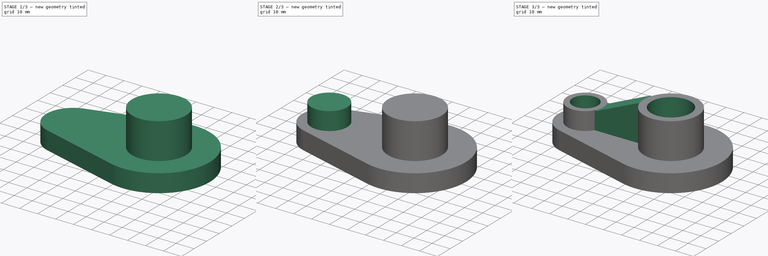
[diagram: build sequence overview — one tinted view per stage of 3, left to right]
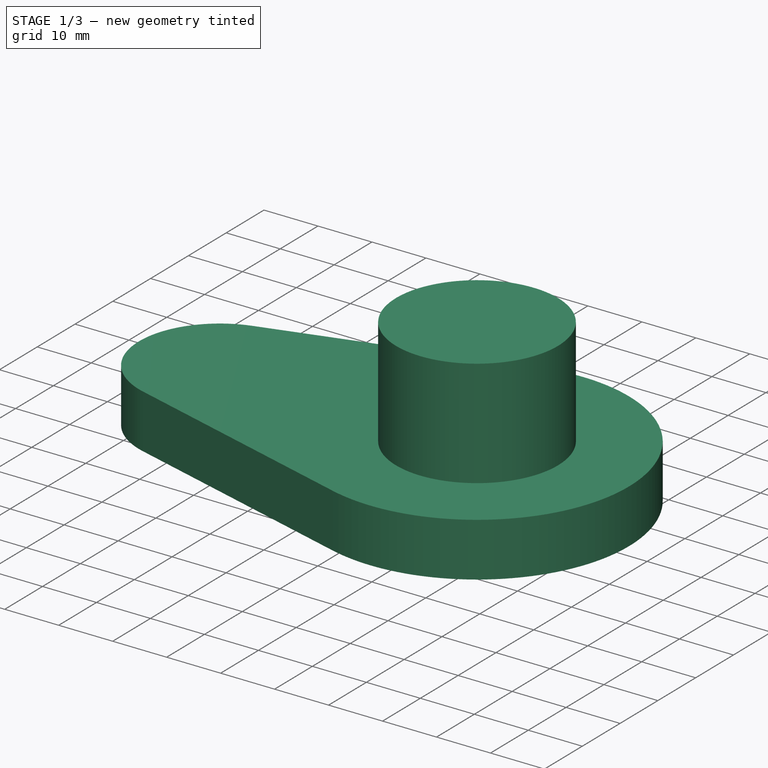
[diagram: stage 1 of 3 — iso view after this stage's code; geometry added in this stage tinted green]
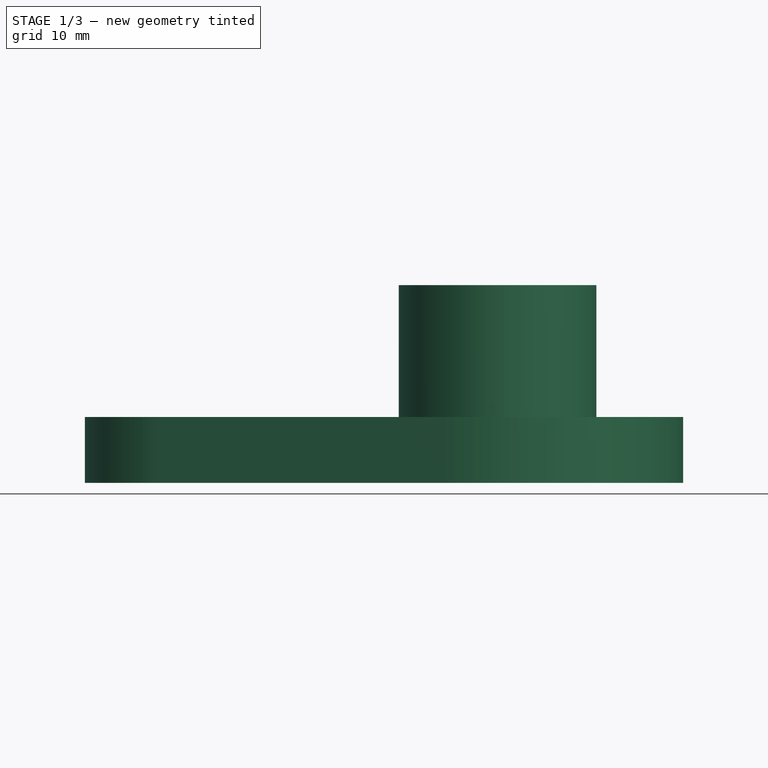
[diagram: stage 1 of 3 — front view after this stage's code; geometry added in this stage tinted green]
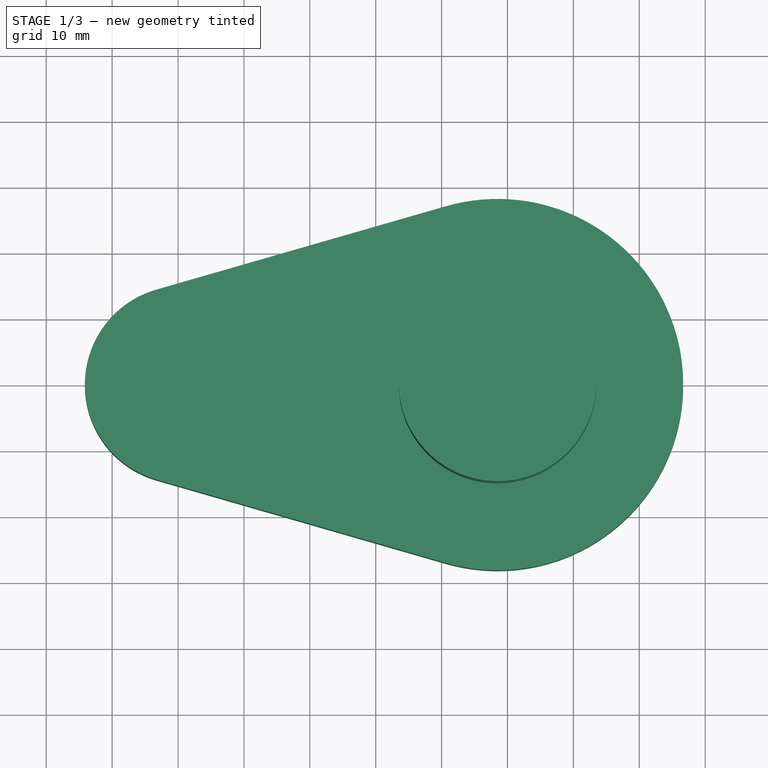
[diagram: stage 1 of 3 — top view after this stage's code; geometry added in this stage tinted green]
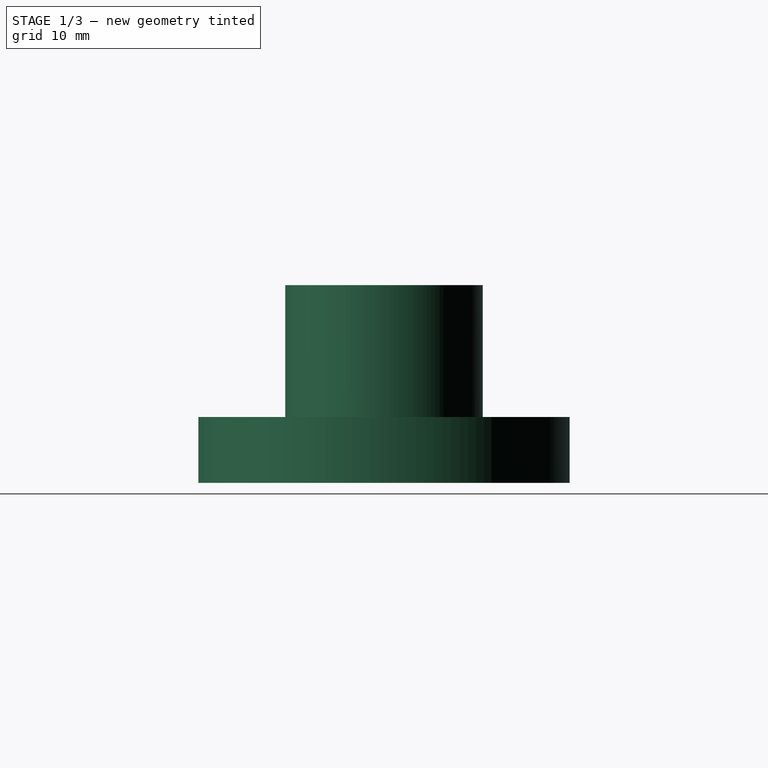
[diagram: stage 1 of 3 — right view after this stage's code; geometry added in this stage tinted green]
FCSTD DOCUMENT  (FreeCAD 2020.11.29R23076 +2859 (Git))
Label: play part 01
License: All rights reserved
LicenseURL: http://en.wikipedia.org/wiki/All_rights_reserved
objects: Sketcher::SketchObject×5, PartDesign::Line×5, PartDesign::Pad×4, PartDesign::Pocket×1, PartDesign::Plane×1, PartDesign::Body×1
note: 27 computed .brp shape members not serialized (recipe doc carries the construction recipe); baked Part::Feature solids carry a one-line shape summary decoded from their .brp

FEATURE [Sketcher::SketchObject] Sketch
  MapMode = 5
  Support = -> [XY_Plane]
  sketch-geometry (5):
    g0: ArcOfCircle CenterX=-9.14673 CenterY=0 CenterZ=0 NormalX=0 NormalY=0 NormalZ=1 AngleXU=0 Radius=14.9997 StartAngle=1.85121 EndAngle=4.43197
    g1: Circle [constr] CenterX=38.4867 CenterY=0 CenterZ=0 NormalX=0 NormalY=0 NormalZ=1 AngleXU=0 Radius=28.1825
    g2: LineSegment StartX=-13.298 StartY=14.4138 StartZ=0 EndX=30.6871 EndY=27.0817 EndZ=0
    g3: LineSegment StartX=30.6871 StartY=-27.0817 StartZ=0 EndX=-13.298 EndY=-14.4138 EndZ=0
    g4: ArcOfCircle CenterX=38.4867 CenterY=0 CenterZ=0 NormalX=0 NormalY=0 NormalZ=1 AngleXU=0 Radius=28.1825 StartAngle=4.43197 EndAngle=8.1344
  constraints (12):
    c: PointOnObject(g0,g-1)
    c: PointOnObject(g1,g-1)
    c: PointOnObject(g2,g1)
    c: Tangent(g2,g0)
    c: Tangent(g3,g0)
    c: Tangent(g2,g1)
    c: Tangent(g1,g3)
    c: Coincident(g0,g2)
    c: Coincident(g0,g3)
    c: Coincident(g4,g1)
    c: Coincident(g4,g3)
    c: Coincident(g4,g2)
FEATURE [PartDesign::Pad] Pad
  ClaimChildren = false
  Direction = (1,1,1)
  Fit = 0
  FitJoin = 0
  InnerFit = 0
  InnerFitJoin = 0
  InnerTaperAngle = 0
  InnerTaperAngleRev = 0
  Length = 10
  Length2 = 100
  NewSolid = false
  Profile = -> Sketch
  Suppress = false
  Type = 0
FEATURE [Sketcher::SketchObject] Sketch001
  ExternalGeometry = -> [Pad]
  MapMode = 5
  Support = -> [XY_Plane]
  sketch-geometry (1):
    g0: Circle CenterX=38.4867 CenterY=0 CenterZ=0 NormalX=0 NormalY=0 NormalZ=1 AngleXU=0 Radius=15
  constraints (2):
    c: Coincident(g0,g-3)
    c: Diameter(g0) = 30
FEATURE [PartDesign::Pad] Pad001
  BaseFeature = -> Pad
  ClaimChildren = false
  Direction = (1,1,1)
  Fit = 0
  FitJoin = 0
  InnerFit = 0
  InnerFitJoin = 0
  InnerTaperAngle = 0
  InnerTaperAngleRev = 0
  Length = 30
  Length2 = 100
  NewSolid = false
  Profile = -> Sketch001
  Suppress = false
  Type = 0
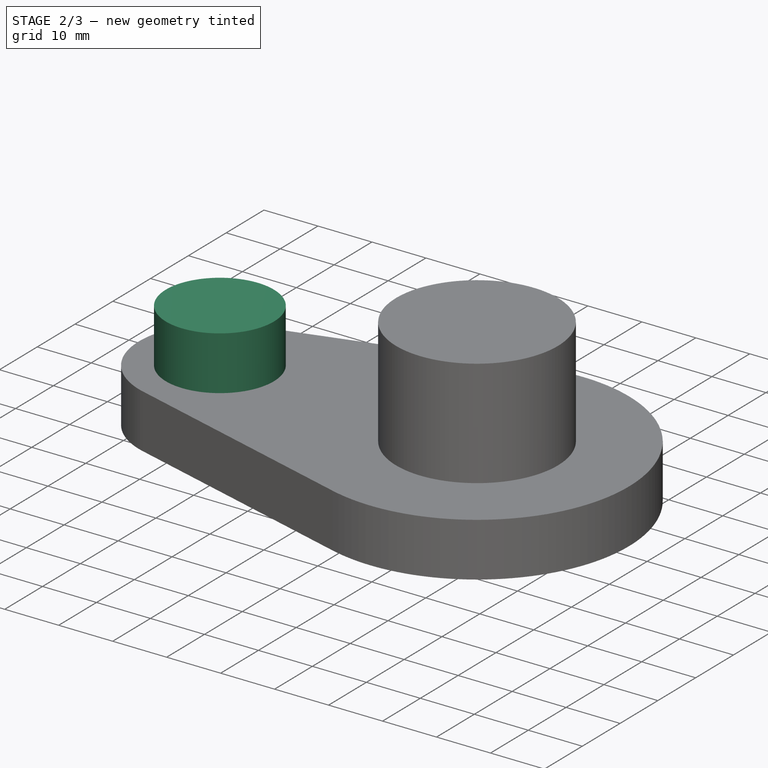
[diagram: stage 2 of 3 — iso view after this stage's code; geometry added in this stage tinted green]
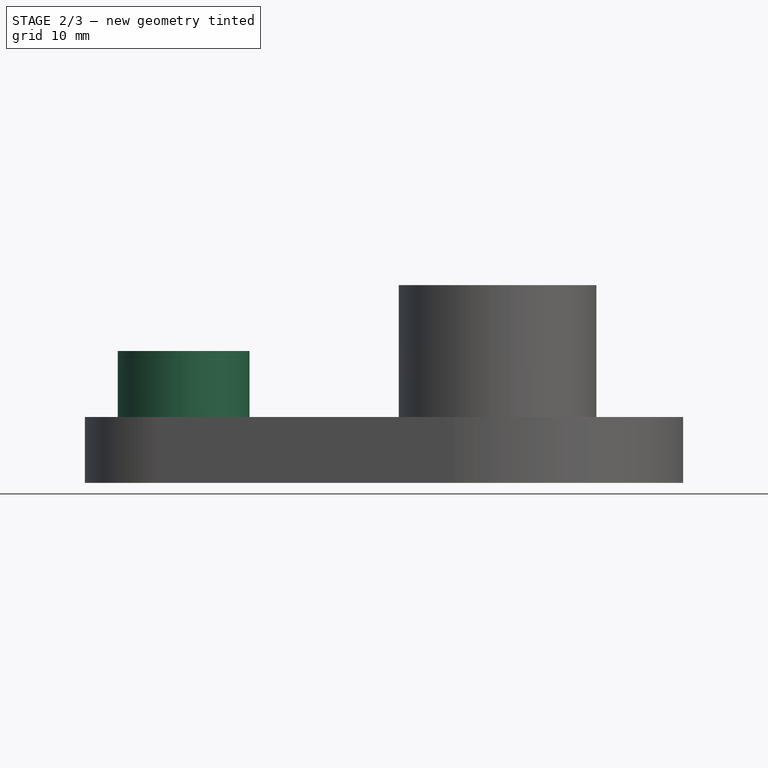
[diagram: stage 2 of 3 — front view after this stage's code; geometry added in this stage tinted green]
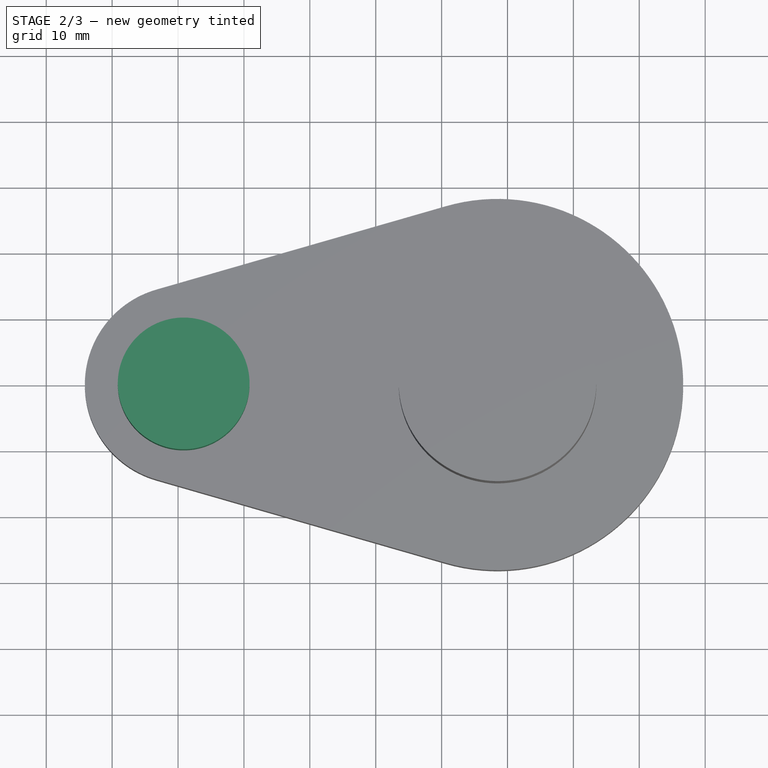
[diagram: stage 2 of 3 — top view after this stage's code; geometry added in this stage tinted green]
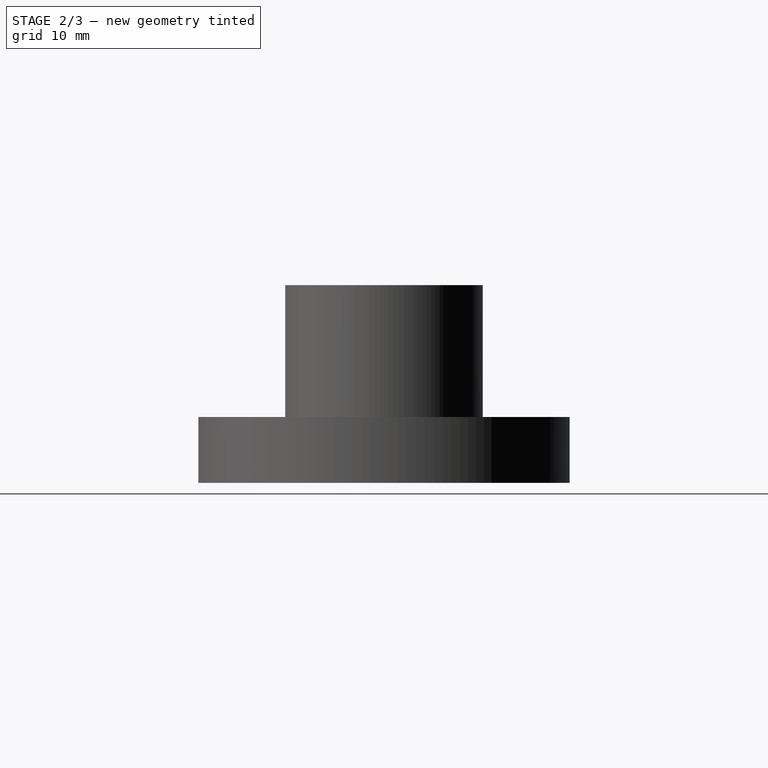
[diagram: stage 2 of 3 — right view after this stage's code; geometry added in this stage tinted green]
FEATURE [Sketcher::SketchObject] Sketch002
  ExternalGeometry = -> [Pad001]
  MapMode = 5
  Support = -> [XY_Plane]
  sketch-geometry (1):
    g0: Circle CenterX=-9.14673 CenterY=0 CenterZ=0 NormalX=0 NormalY=0 NormalZ=1 AngleXU=0 Radius=10
  constraints (2):
    c: Coincident(g0,g-3)
    c: Diameter(g0) = 20
FEATURE [PartDesign::Pad] Pad002
  BaseFeature = -> Pad001
  ClaimChildren = false
  Direction = (1,1,1)
  Fit = 0
  FitJoin = 0
  InnerFit = 0
  InnerFitJoin = 0
  InnerTaperAngle = 0
  InnerTaperAngleRev = 0
  Length = 20
  Length2 = 100
  NewSolid = false
  Profile = -> Sketch002
  Suppress = false
  Type = 0
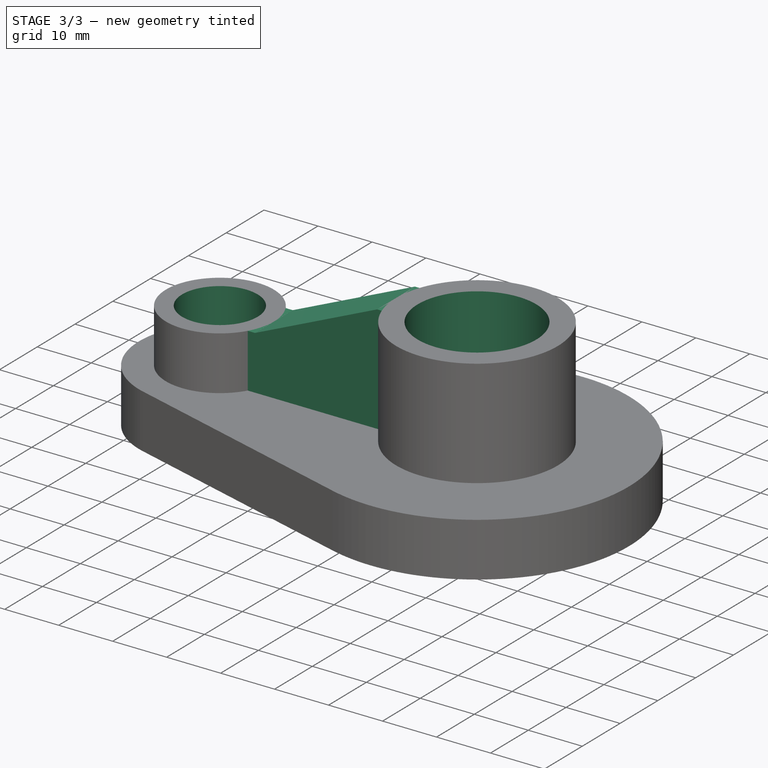
[diagram: stage 3 of 3 — iso view after this stage's code; geometry added in this stage tinted green]
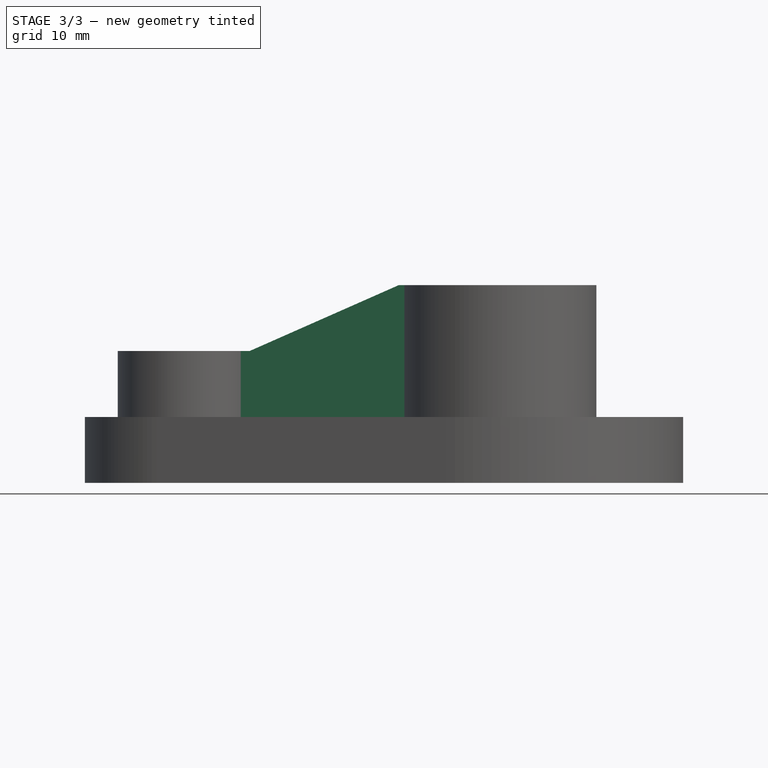
[diagram: stage 3 of 3 — front view after this stage's code; geometry added in this stage tinted green]
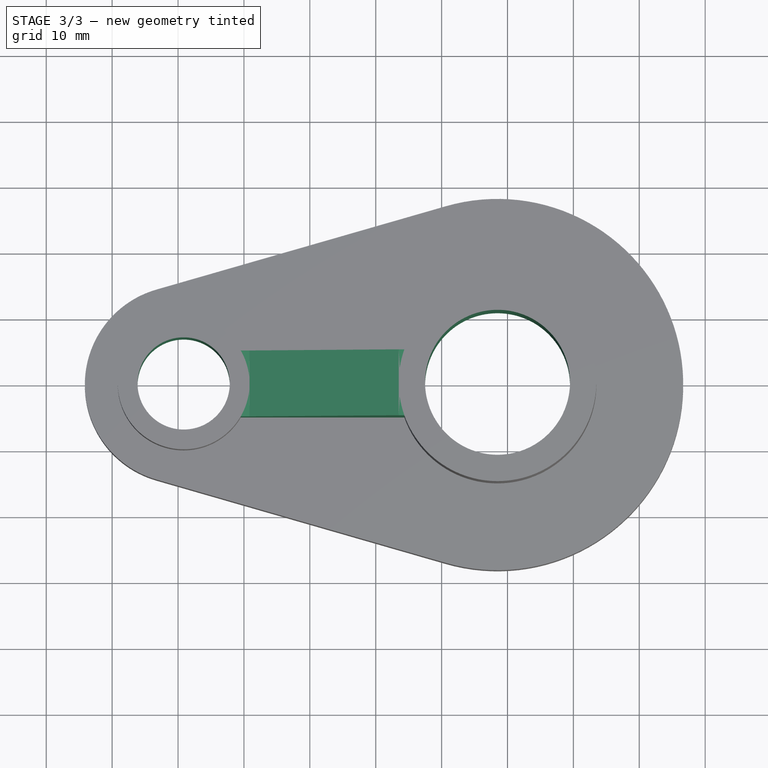
[diagram: stage 3 of 3 — top view after this stage's code; geometry added in this stage tinted green]
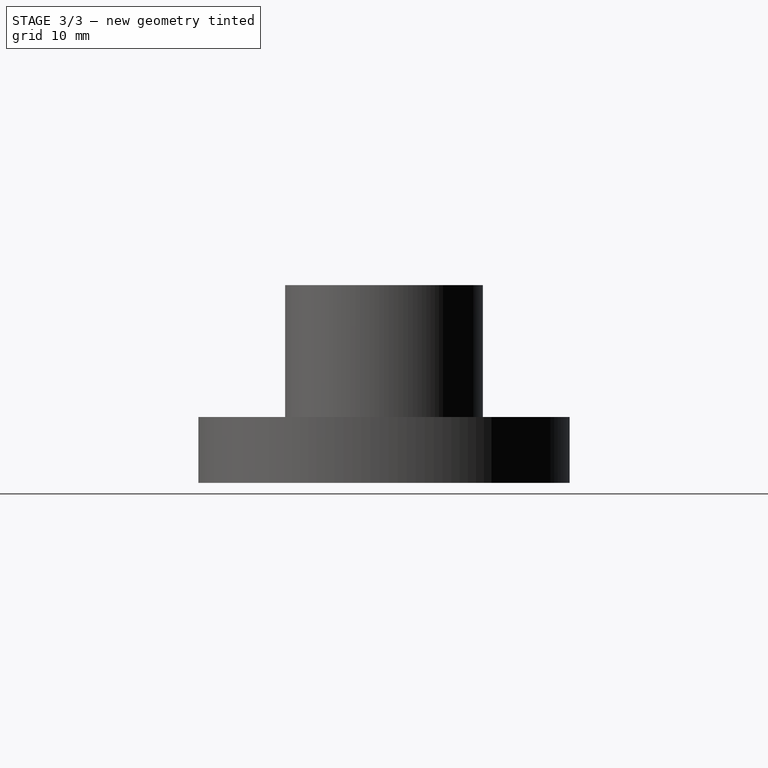
[diagram: stage 3 of 3 — right view after this stage's code; geometry added in this stage tinted green]
FEATURE [Sketcher::SketchObject] Sketch003
  ExternalGeometry = -> [Pad002]
  MapMode = 5
  Support = -> [XY_Plane]
  sketch-geometry (2):
    g0: Circle CenterX=-9.14673 CenterY=0 CenterZ=0 NormalX=0 NormalY=0 NormalZ=1 AngleXU=0 Radius=7
    g1: Circle CenterX=38.4867 CenterY=0 CenterZ=0 NormalX=0 NormalY=0 NormalZ=1 AngleXU=0 Radius=11
  constraints (4):
    c: Coincident(g0,g-4)
    c: Coincident(g1,g-3)
    c: Diameter(g0) = 14
    c: Diameter(g1) = 22
FEATURE [PartDesign::Pocket] Pocket
  BaseFeature = -> Pad002
  ClaimChildren = false
  Fit = 0
  FitJoin = 0
  InnerFit = 0
  InnerFitJoin = 0
  InnerTaperAngle = 0
  InnerTaperAngleRev = 0
  Length = 5
  Length2 = 100
  NewSolid = false
  Profile = -> Sketch003
  Reversed = true
  Suppress = false
  Type = 1
FEATURE [PartDesign::Line] DatumLine
  AttacherType = Attacher::AttachEngineLine
  Length = 30
  ResizeMode = 0
FEATURE [PartDesign::Line] DatumLine001
  AttacherType = Attacher::AttachEngineLine
  Length = 30
  ResizeMode = 0
FEATURE [PartDesign::Line] DatumLine002
  AttacherType = Attacher::AttachEngineLine
  Length = 30
  ResizeMode = 0
FEATURE [PartDesign::Line] DatumLine003
  AttacherType = Attacher::AttachEngineLine
  Length = 30
  MapMode = 42
  Placement = pos=(38.4867,-1e-16,0) rot=(0,0,1;0rad)
  ResizeMode = 0
  Support = -> [Pocket]
FEATURE [PartDesign::Line] DatumLine004
  AttacherType = Attacher::AttachEngineLine
  Length = 30
  MapMode = 42
  Placement = pos=(-9.14673,-2e-16,0) rot=(0,0,1;0rad)
  ResizeMode = 0
  Support = -> [Pocket]
FEATURE [PartDesign::Plane] DatumPlane
  Length = 90.7126
  MapMode = 13
  Placement = pos=(6.7311,-1e-16,0.333333) rot=(0,0.707107,0.707107;3.14159rad)
  ResizeMode = 0
  Support = -> [DatumLine004,DatumLine003]
  Width = 30
FEATURE [Sketcher::SketchObject] Sketch004
  ExternalGeometry = -> [Pocket]
  MapMode = 5
  Placement = pos=(6.7311,-1e-16,0.333333) rot=(0,0.707107,0.707107;3.14159rad)
  Support = -> [DatumPlane]
  sketch-geometry (6):
    g0: LineSegment StartX=-16.7556 StartY=29.6667 StartZ=0 EndX=5.87782 EndY=19.6667 EndZ=0
    g1: LineSegment StartX=5.87782 StartY=19.6667 StartZ=0 EndX=7.87782 EndY=19.6667 EndZ=0
    g2: LineSegment StartX=7.87782 StartY=19.6667 StartZ=0 EndX=7.87782 EndY=9.66667 EndZ=0
    g3: LineSegment StartX=7.87782 StartY=9.66667 StartZ=0 EndX=-18.7556 EndY=9.66667 EndZ=0
    g4: LineSegment StartX=-18.7556 StartY=9.66667 StartZ=0 EndX=-18.7556 EndY=29.6667 EndZ=0
    g5: LineSegment StartX=-18.7556 StartY=29.6667 StartZ=0 EndX=-16.7556 EndY=29.6667 EndZ=0
  constraints (16):
    c: Coincident(g0,g-4)
    c: Coincident(g0,g-3)
    c: Coincident(g0,g1)
    c: PointOnObject(g1,g-3)
    c: Coincident(g1,g2)
    c: PointOnObject(g2,g-5)
    c: Vertical(g2)
    c: Coincident(g2,g3)
    c: PointOnObject(g3,g-5)
    c: Coincident(g3,g4)
    c: PointOnObject(g4,g-4)
    c: Vertical(g4)
    c: Coincident(g4,g5)
    c: Coincident(g5,g0)
    c: DistanceX(g5,g5) = 2
    c: DistanceX(g1,g1) = 2
FEATURE [PartDesign::Pad] Pad003
  BaseFeature = -> Pocket
  ClaimChildren = false
  Direction = (1,1,1)
  Fit = 0
  FitJoin = 0
  InnerFit = 0
  InnerFitJoin = 0
  InnerTaperAngle = 0
  InnerTaperAngleRev = 0
  Length = 10
  Length2 = 100
  Midplane = true
  NewSolid = false
  Profile = -> Sketch004
  Suppress = false
  Type = 0
FEATURE [PartDesign::Body] Body
  ExportMode = 0
  Group = -> [Sketch,Pad,Sketch001,Pad001,Sketch002,Pad002,Sketch003,Pocket,DatumLine,DatumLine001,DatumLine002,DatumLine003,DatumLine004,DatumPlane,Sketch004,Pad003]
  Origin = -> Origin
  Tip = -> Pad003
  _ExportChildren = -> [Pad,Pad001,Pad002,Pocket,DatumLine,DatumLine001,DatumLine002,DatumLine003,DatumLine004,DatumPlane,Pad003]
  _GroupVersion = 1
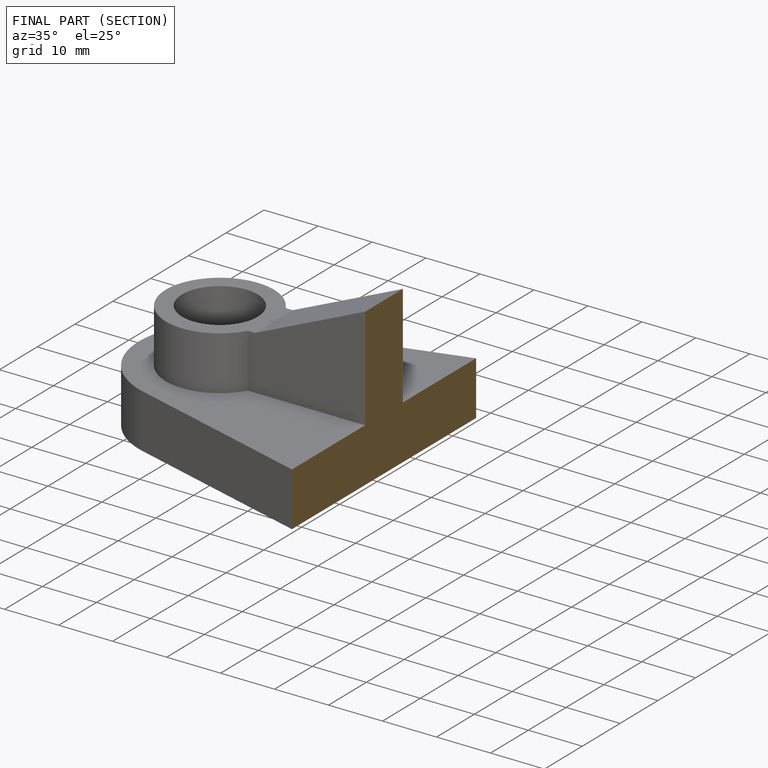
[diagram: finished part — half-section view (interior)]
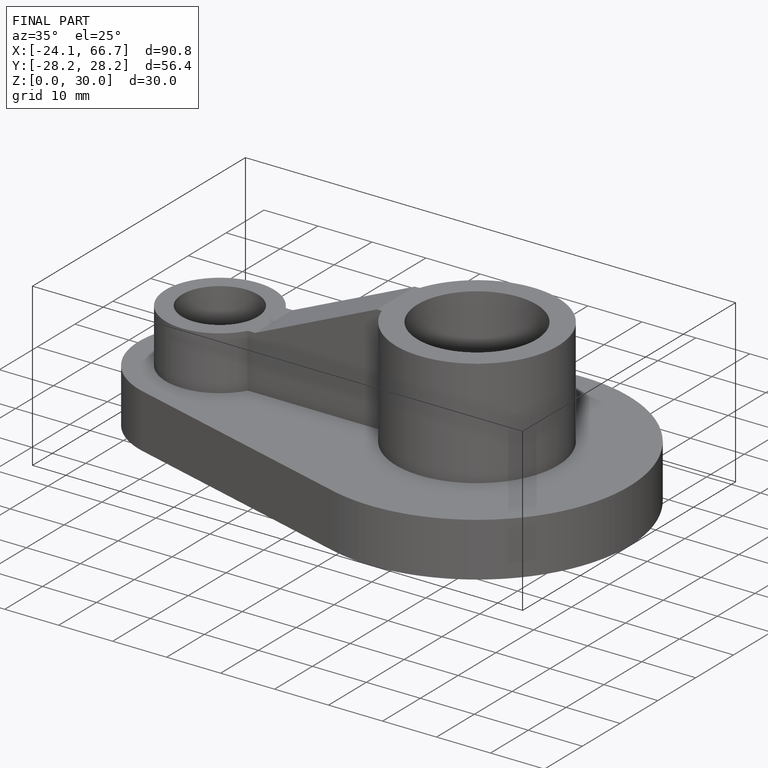
[diagram: finished part — iso view with bounding-box wireframe]
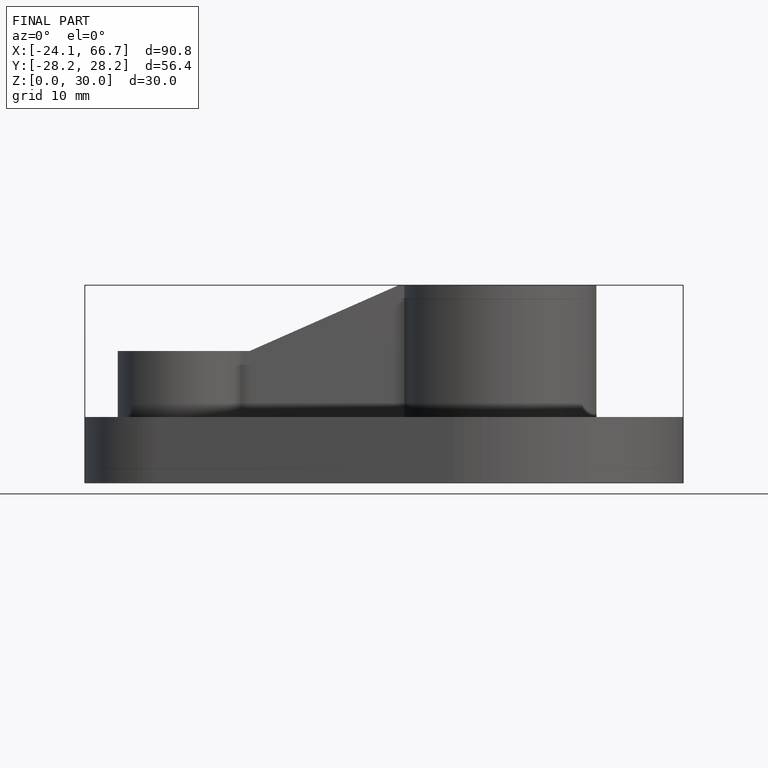
[diagram: finished part — front view with bounding-box wireframe]
